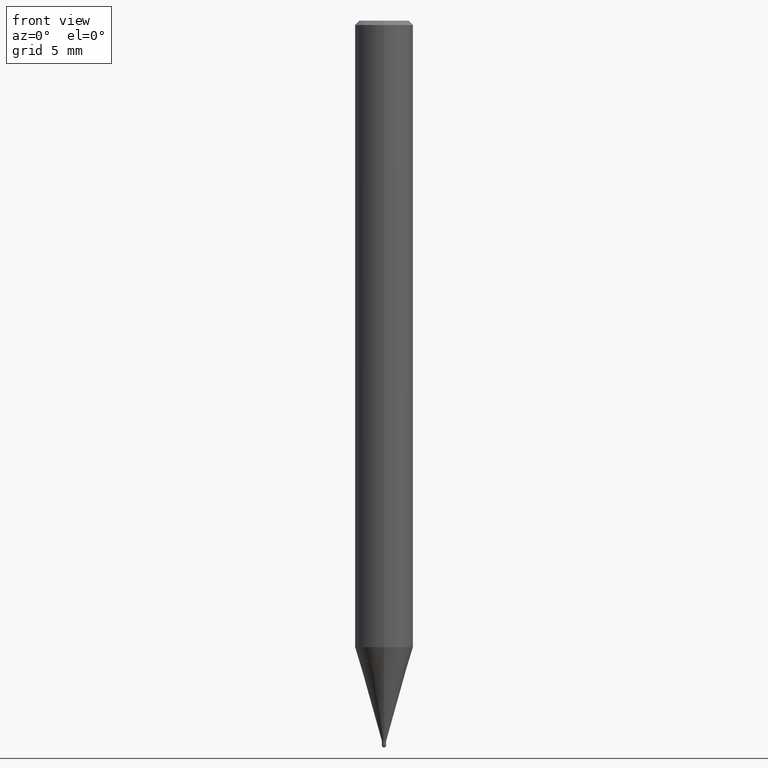
[diagram: clean part render]
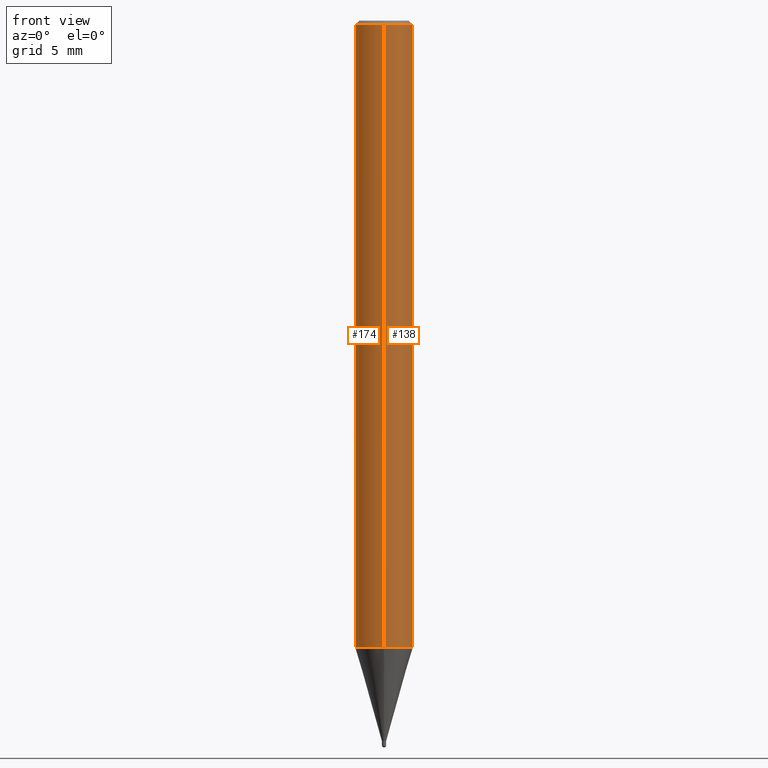
[diagram: same view with one multi-face feature highlighted, each face labeled with its STEP entity id]
A machine part, front view. The highlighted faces form ONE feature: a constant-radius fillet chain: 2 tangent blend faces with common blend radius 2 mm. The faces share edges in the B-rep.
Their STEP definitions:
[1] entity #174 (Cylinder):
#90=VERTEX_POINT('',#215);
#94=VERTEX_POINT('',#219);
#96=VERTEX_POINT('',#221);
#142=VERTEX_POINT('',#275);
#148=EDGE_CURVE('',#94,#90,#283,.T.);
#164=EDGE_CURVE('',#90,#96,#301,.T.);
#166=EDGE_CURVE('',#94,#142,#303,.T.);
#168=EDGE_CURVE('',#96,#142,#305,.T.);
#174=ADVANCED_FACE('',(#312),#313,.T.);
#215=CARTESIAN_POINT('',(2.44921270764475E-016,-2.0,-0.299999999999997));
#219=CARTESIAN_POINT('',(2.44921270764475E-016,-2.0,-43.098));
#221=CARTESIAN_POINT('',(0.0,2.0,-0.299999999999997));
#275=CARTESIAN_POINT('',(0.0,2.0,-43.098));
#283=LINE('',#434,#435);
#301=CIRCLE('',#456,2.0);
#303=CIRCLE('',#459,2.0);
#305=LINE('',#462,#463);
#312=FACE_OUTER_BOUND('',#470,.T.);
#313=CYLINDRICAL_SURFACE('',#471,2.0);
#434=CARTESIAN_POINT('',(2.44921270764475E-016,-2.0,-21.699));
#435=VECTOR('',#587,1.0);
#456=AXIS2_PLACEMENT_3D('',#610,#611,#612);
#459=AXIS2_PLACEMENT_3D('',#613,#614,#615);
#462=CARTESIAN_POINT('',(-2.44921270764475E-016,2.0,-21.699));
#463=VECTOR('',#616,1.0);
#470=EDGE_LOOP('',(#624,#625,#626,#627));
#471=AXIS2_PLACEMENT_3D('',#628,#629,#630);
#587=DIRECTION('',(-0.0,-0.0,1.0));
#610=CARTESIAN_POINT('',(0.0,0.0,-0.299999999999997));
#611=DIRECTION('',(0.0,0.0,-1.0));
#612=DIRECTION('',(0.0,1.0,0.0));
#613=CARTESIAN_POINT('',(0.0,0.0,-43.098));
#614=DIRECTION('',(0.0,0.0,-1.0));
#615=DIRECTION('',(0.0,1.0,0.0));
#616=DIRECTION('',(0.0,0.0,-1.0));
#624=ORIENTED_EDGE('',*,*,#168,.T.);
#625=ORIENTED_EDGE('',*,*,#166,.F.);
#626=ORIENTED_EDGE('',*,*,#148,.T.);
#627=ORIENTED_EDGE('',*,*,#164,.T.);
#628=CARTESIAN_POINT('',(0.0,0.0,-21.699));
#629=DIRECTION('',(-0.0,-0.0,1.0));
#630=DIRECTION('',(0.0,1.0,0.0));
[2] entity #138 (Cylinder):
#90=VERTEX_POINT('',#215);
#94=VERTEX_POINT('',#219);
#96=VERTEX_POINT('',#221);
#120=EDGE_CURVE('',#96,#90,#249,.T.);
#138=ADVANCED_FACE('',(#270),#271,.T.);
#142=VERTEX_POINT('',#275);
#148=EDGE_CURVE('',#94,#90,#283,.T.);
#156=EDGE_CURVE('',#142,#94,#292,.T.);
#168=EDGE_CURVE('',#96,#142,#305,.T.);
#215=CARTESIAN_POINT('',(2.44921270764475E-016,-2.0,-0.299999999999997));
#219=CARTESIAN_POINT('',(2.44921270764475E-016,-2.0,-43.098));
#221=CARTESIAN_POINT('',(0.0,2.0,-0.299999999999997));
#249=CIRCLE('',#391,2.0);
#270=FACE_OUTER_BOUND('',#419,.T.);
#271=CYLINDRICAL_SURFACE('',#420,2.0);
#275=CARTESIAN_POINT('',(0.0,2.0,-43.098));
#283=LINE('',#434,#435);
#292=CIRCLE('',#446,2.0);
#305=LINE('',#462,#463);
#391=AXIS2_PLACEMENT_3D('',#531,#532,#533);
#419=EDGE_LOOP('',(#570,#571,#572,#573));
#420=AXIS2_PLACEMENT_3D('',#574,#575,#576);
#434=CARTESIAN_POINT('',(2.44921270764475E-016,-2.0,-21.699));
#435=VECTOR('',#587,1.0);
#446=AXIS2_PLACEMENT_3D('',#599,#600,#601);
#462=CARTESIAN_POINT('',(-2.44921270764475E-016,2.0,-21.699));
#463=VECTOR('',#616,1.0);
#531=CARTESIAN_POINT('',(0.0,0.0,-0.299999999999997));
#532=DIRECTION('',(0.0,0.0,-1.0));
#533=DIRECTION('',(0.0,1.0,0.0));
#570=ORIENTED_EDGE('',*,*,#168,.F.);
#571=ORIENTED_EDGE('',*,*,#120,.T.);
#572=ORIENTED_EDGE('',*,*,#148,.F.);
#573=ORIENTED_EDGE('',*,*,#156,.F.);
#574=CARTESIAN_POINT('',(0.0,0.0,-21.699));
#575=DIRECTION('',(-0.0,-0.0,1.0));
#576=DIRECTION('',(0.0,1.0,0.0));
#587=DIRECTION('',(-0.0,-0.0,1.0));
#599=CARTESIAN_POINT('',(0.0,0.0,-43.098));
#600=DIRECTION('',(0.0,0.0,-1.0));
#601=DIRECTION('',(0.0,1.0,0.0));
#616=DIRECTION('',(0.0,0.0,-1.0));